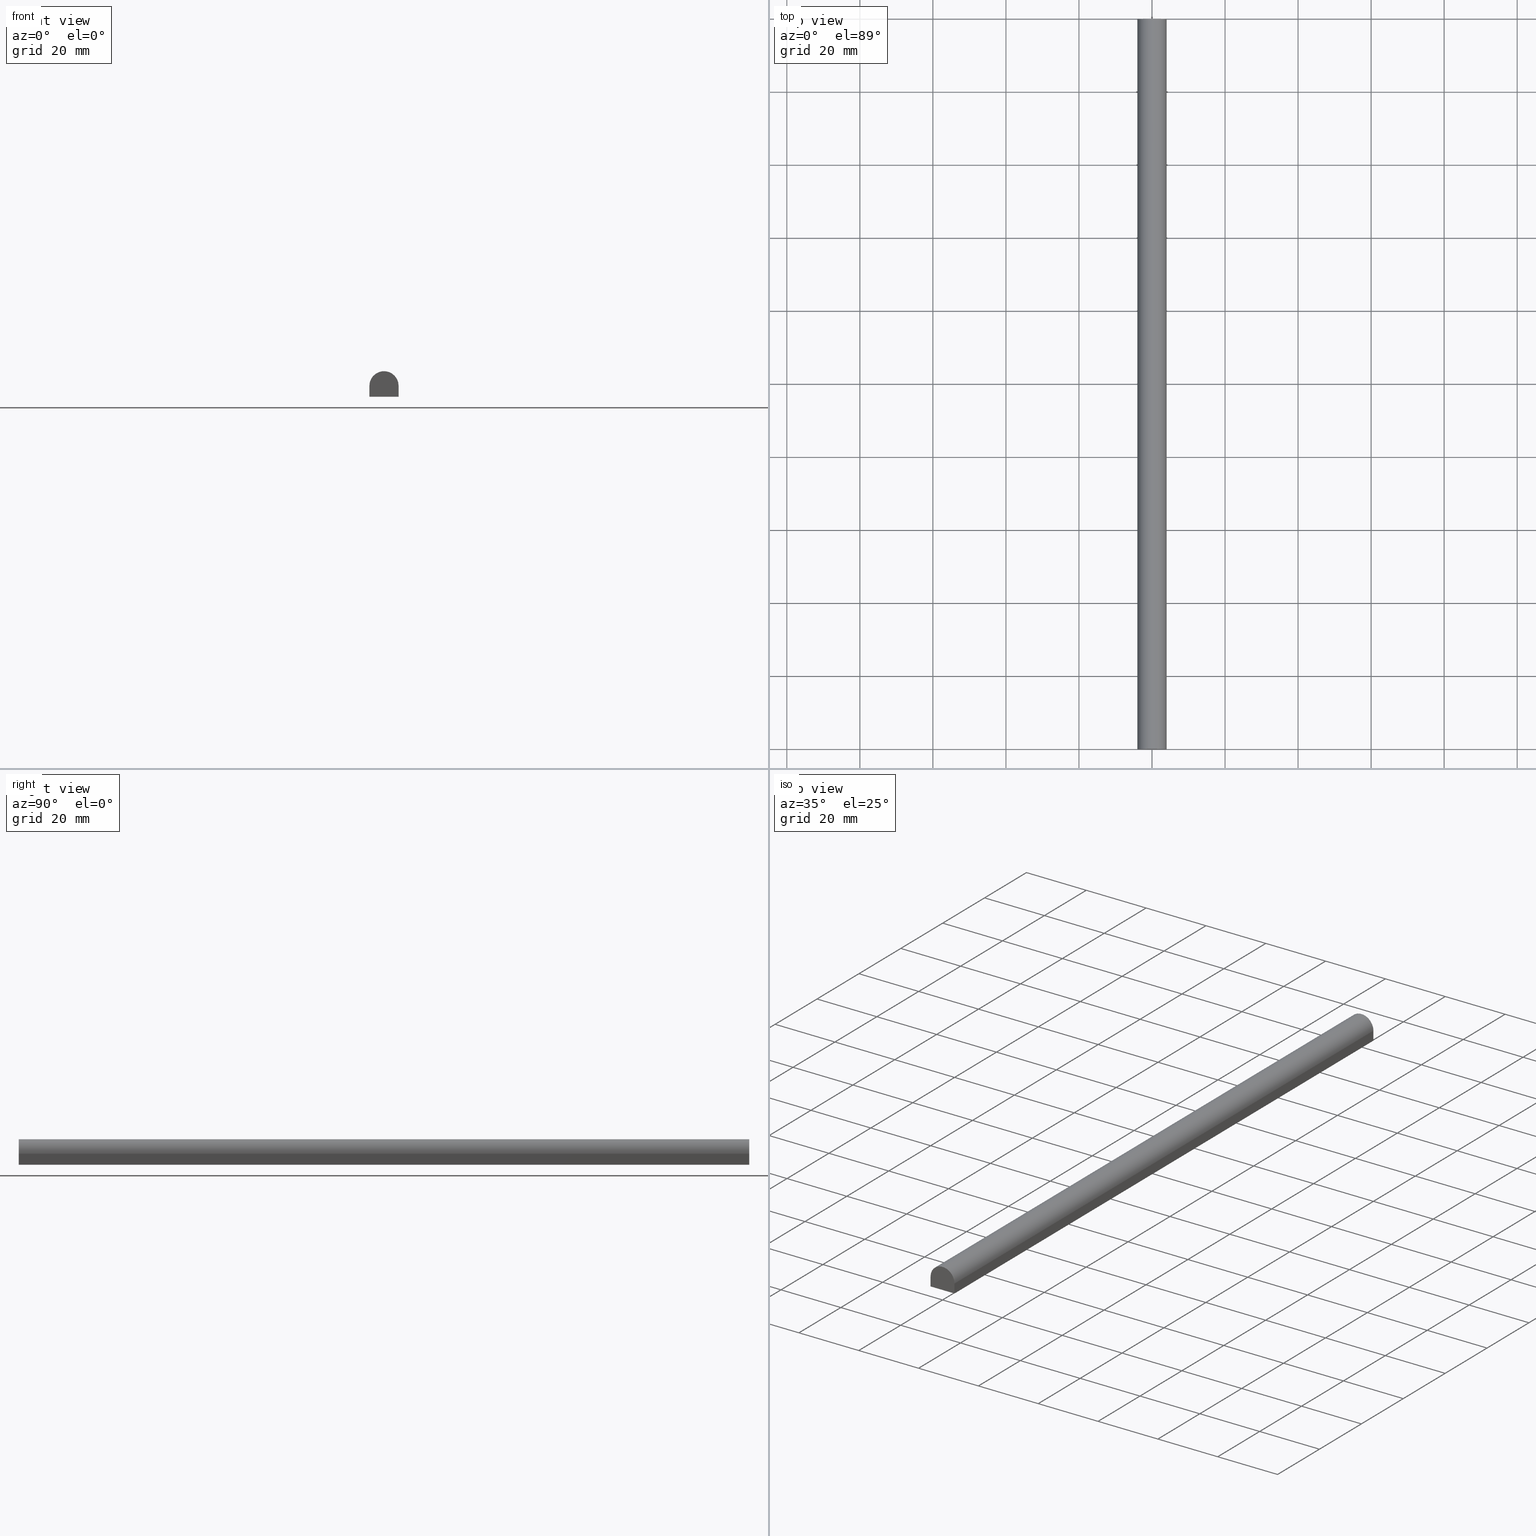
[diagram: canonical four-view strip — front | top / right | iso, engineering-drawing reading convention]
A machine part, canonical four-view strip (front | top / right | iso — engineering-drawing reading convention). The complete STEP part file that produces these views, byte-faithful:
ISO-10303-21;
HEADER;
FILE_DESCRIPTION (( 'STEP AP214' ),
    '1' );
FILE_NAME ('TM_341W_2.STEP',
    '2016-05-10T04:10:50',
    ( '' ),
    ( '' ),
    'SwSTEP 2.0',
    'SolidWorks 2015',
    '' );
FILE_SCHEMA (( 'AUTOMOTIVE_DESIGN' ));
ENDSEC;

DATA;
#1 = CARTESIAN_POINT ( 'NONE',  ( 4.000000000000000000, 1000.000000000000000, -0.5000000000000000000 ) ) ;
#2 = CARTESIAN_POINT ( 'NONE',  ( 0.0000000000000000000, 0.0000000000000000000, 0.0000000000000000000 ) ) ;
#3 = EDGE_LOOP ( 'NONE', ( #182, #129, #164, #157 ) ) ;
#4 =( LENGTH_UNIT ( ) NAMED_UNIT ( * ) SI_UNIT ( .MILLI., .METRE. ) );
#5 = AXIS2_PLACEMENT_3D ( 'NONE', #117, #39, #173 ) ;
#6 = PRODUCT_DEFINITION_FORMATION_WITH_SPECIFIED_SOURCE ( 'ANY', '', #73, .NOT_KNOWN. ) ;
#7 = ORIENTED_EDGE ( 'NONE', *, *, #188, .T. ) ;
#8 =( NAMED_UNIT ( * ) SI_UNIT ( $, .STERADIAN. ) SOLID_ANGLE_UNIT ( ) );
#9 = SURFACE_SIDE_STYLE ('',( #24 ) ) ;
#10 =( LENGTH_UNIT ( ) NAMED_UNIT ( * ) SI_UNIT ( .MILLI., .METRE. ) );
#11 = FACE_OUTER_BOUND ( 'NONE', #176, .T. ) ;
#12 = ADVANCED_FACE ( 'NONE', ( #11 ), #61, .T. ) ;
#13 = VERTEX_POINT ( 'NONE', #108 ) ;
#14 = DIRECTION ( 'NONE',  ( 0.0000000000000000000, 0.0000000000000000000, -1.000000000000000000 ) ) ;
#15 = CARTESIAN_POINT ( 'NONE',  ( -4.000000000000000000, 1000.000000000000000, -3.500000000000000000 ) ) ;
#16 = FACE_OUTER_BOUND ( 'NONE', #126, .T. ) ;
#17 = AXIS2_PLACEMENT_3D ( 'NONE', #95, #185, #53 ) ;
#18 = PRODUCT_CONTEXT ( 'NONE', #101, 'mechanical' ) ;
#19 = PRODUCT_RELATED_PRODUCT_CATEGORY ( 'part', '', ( #73 ) ) ;
#20 =( NAMED_UNIT ( * ) PLANE_ANGLE_UNIT ( ) SI_UNIT ( $, .RADIAN. ) );
#21 = VECTOR ( 'NONE', #55, 1000.000000000000000 ) ;
#22 = SHAPE_REPRESENTATION ( 'TM_341W_2', ( #203, #30 ), #191 ) ;
#23 = PRODUCT ( 'rubber foam', 'rubber foam', '', ( #18 ) ) ;
#24 = SURFACE_STYLE_FILL_AREA ( #146 ) ;
#25 = SHAPE_REPRESENTATION ( 'rubber foam', ( #83 ), #107 ) ;
#26 = PRODUCT_DEFINITION_SHAPE ( 'NONE', 'NONE',  #238 ) ;
#27 = MANIFOLD_SOLID_BREP ( '���߰�1', #134 ) ;
#28 = VERTEX_POINT ( 'NONE', #111 ) ;
#29 = CARTESIAN_POINT ( 'NONE',  ( -4.000000000000000000, 200.0000000000000000, 0.0000000000000000000 ) ) ;
#30 = AXIS2_PLACEMENT_3D ( 'NONE', #66, #103, #193 ) ;
#31 = PRODUCT_DEFINITION_FORMATION_WITH_SPECIFIED_SOURCE ( 'ANY', '', #23, .NOT_KNOWN. ) ;
#32 = VECTOR ( 'NONE', #202, 1000.000000000000000 ) ;
#33 = DIRECTION ( 'NONE',  ( -0.0000000000000000000, -0.0000000000000000000, -1.000000000000000000 ) ) ;
#34 = ORIENTED_EDGE ( 'NONE', *, *, #194, .T. ) ;
#35 = DIRECTION ( 'NONE',  ( 1.000000000000000000, -0.0000000000000000000, -0.0000000000000000000 ) ) ;
#36 = PLANE ( 'NONE',  #118 ) ;
#37 = ORIENTED_EDGE ( 'NONE', *, *, #175, .T. ) ;
#38 = APPLICATION_PROTOCOL_DEFINITION ( 'draft international standard', 'automotive_design', 1998, #192 ) ;
#39 = DIRECTION ( 'NONE',  ( 0.0000000000000000000, 0.0000000000000000000, 1.000000000000000000 ) ) ;
#40 = DIRECTION ( 'NONE',  ( 0.0000000000000000000, 0.0000000000000000000, 1.000000000000000000 ) ) ;
#41 = PRODUCT_DEFINITION_CONTEXT ( 'detailed design', #192, 'design' ) ;
#42 = FACE_OUTER_BOUND ( 'NONE', #3, .T. ) ;
#43 = ORIENTED_EDGE ( 'NONE', *, *, #229, .F. ) ;
#44 = CARTESIAN_POINT ( 'NONE',  ( 0.0000000000000000000, 0.0000000000000000000, 0.0000000000000000000 ) ) ;
#45 =( NAMED_UNIT ( * ) PLANE_ANGLE_UNIT ( ) SI_UNIT ( $, .RADIAN. ) );
#46 = MECHANICAL_DESIGN_GEOMETRIC_PRESENTATION_REPRESENTATION (  '', ( #72 ), #64 ) ;
#47 = PRODUCT_RELATED_PRODUCT_CATEGORY ( 'part', '', ( #23 ) ) ;
#48 = MECHANICAL_DESIGN_GEOMETRIC_PRESENTATION_REPRESENTATION (  '', ( #200 ), #102 ) ;
#49 = PRESENTATION_STYLE_ASSIGNMENT (( #58 ) ) ;
#50 = ADVANCED_BREP_SHAPE_REPRESENTATION ( '', ( #27, #83 ), #107 ) ;
#51 = LINE ( 'NONE', #29, #145 ) ;
#52 = ORIENTED_EDGE ( 'NONE', *, *, #149, .T. ) ;
#53 = DIRECTION ( 'NONE',  ( 0.0000000000000000000, 0.0000000000000000000, 1.000000000000000000 ) ) ;
#54 =( NAMED_UNIT ( * ) PLANE_ANGLE_UNIT ( ) SI_UNIT ( $, .RADIAN. ) );
#55 = DIRECTION ( 'NONE',  ( 0.0000000000000000000, -1.000000000000000000, 0.0000000000000000000 ) ) ;
#56 = CARTESIAN_POINT ( 'NONE',  ( -4.000000000000000000, 1000.000000000000000, -0.5000000000000000000 ) ) ;
#57 = PRESENTATION_LAYER_ASSIGNMENT (  '', '', ( #200 ) ) ;
#58 = SURFACE_STYLE_USAGE ( .BOTH. , #186 ) ;
#59 = UNCERTAINTY_MEASURE_WITH_UNIT (LENGTH_MEASURE( 1.000000000000000100E-005 ), #10, 'distance_accuracy_value', 'NONE');
#60 = VECTOR ( 'NONE', #78, 1000.000000000000000 ) ;
#61 = PLANE ( 'NONE',  #135 ) ;
#62 = PRESENTATION_STYLE_ASSIGNMENT (( #159 ) ) ;
#63 = PRODUCT_DEFINITION_SHAPE ( 'NONE', 'NONE',  #241 ) ;
#64 =( GEOMETRIC_REPRESENTATION_CONTEXT ( 3 ) GLOBAL_UNCERTAINTY_ASSIGNED_CONTEXT ( ( #59 ) ) GLOBAL_UNIT_ASSIGNED_CONTEXT ( ( #10, #54, #8 ) ) REPRESENTATION_CONTEXT ( 'NONE', 'WORKASPACE' ) );
#65 = PRODUCT_CONTEXT ( 'NONE', #80, 'mechanical' ) ;
#66 = CARTESIAN_POINT ( 'NONE',  ( 0.0000000000000000000, 0.0000000000000000000, 0.0000000000000000000 ) ) ;
#67 = DIRECTION ( 'NONE',  ( 0.0000000000000000000, 0.0000000000000000000, -1.000000000000000000 ) ) ;
#68 = AXIS2_PLACEMENT_3D ( 'NONE', #216, #113, #204 ) ;
#69 = VECTOR ( 'NONE', #35, 1000.000000000000000 ) ;
#70 = PLANE ( 'NONE',  #68 ) ;
#71 = LINE ( 'NONE', #239, #84 ) ;
#72 = STYLED_ITEM ( 'NONE', ( #62 ), #27 ) ;
#73 = PRODUCT ( 'TM_341W_2', 'TM_341W_2', '', ( #65 ) ) ;
#74 = DIRECTION ( 'NONE',  ( -1.000000000000000000, 0.0000000000000000000, 0.0000000000000000000 ) ) ;
#75 = ADVANCED_FACE ( 'NONE', ( #42 ), #106, .T. ) ;
#76 = UNCERTAINTY_MEASURE_WITH_UNIT (LENGTH_MEASURE( 1.000000000000000100E-005 ), #4, 'distance_accuracy_value', 'NONE');
#77 = CARTESIAN_POINT ( 'NONE',  ( 0.0000000000000000000, 0.0000000000000000000, -3.500000000000000000 ) ) ;
#78 = DIRECTION ( 'NONE',  ( -0.0000000000000000000, -0.0000000000000000000, -1.000000000000000000 ) ) ;
#79 = VERTEX_POINT ( 'NONE', #180 ) ;
#80 = APPLICATION_CONTEXT ( 'automotive_design' ) ;
#81 = CONTEXT_DEPENDENT_SHAPE_REPRESENTATION ( #136, #63 ) ;
#82 = LINE ( 'NONE', #148, #32 ) ;
#83 = AXIS2_PLACEMENT_3D ( 'NONE', #2, #105, #211 ) ;
#84 = VECTOR ( 'NONE', #179, 1000.000000000000000 ) ;
#85 = VERTEX_POINT ( 'NONE', #128 ) ;
#86 = FILL_AREA_STYLE_COLOUR ( '', #110 ) ;
#87 = ORIENTED_EDGE ( 'NONE', *, *, #188, .F. ) ;
#88 = VECTOR ( 'NONE', #210, 1000.000000000000000 ) ;
#89 = ORIENTED_EDGE ( 'NONE', *, *, #167, .F. ) ;
#90 = ORIENTED_EDGE ( 'NONE', *, *, #229, .T. ) ;
#91 = FACE_OUTER_BOUND ( 'NONE', #232, .T. ) ;
#92 = AXIS2_PLACEMENT_3D ( 'NONE', #219, #222, #163 ) ;
#93 = PLANE ( 'NONE',  #115 ) ;
#94 = EDGE_LOOP ( 'NONE', ( #235, #181, #237, #97 ) ) ;
#95 = CARTESIAN_POINT ( 'NONE',  ( 0.0000000000000000000, 200.0000000000000000, -0.5000000000000000000 ) ) ;
#96 = LINE ( 'NONE', #104, #88 ) ;
#97 = ORIENTED_EDGE ( 'NONE', *, *, #178, .T. ) ;
#98 = ORIENTED_EDGE ( 'NONE', *, *, #141, .T. ) ;
#99 = LINE ( 'NONE', #184, #233 ) ;
#100 = CARTESIAN_POINT ( 'NONE',  ( -4.000000000000000000, 0.0000000000000000000, -3.500000000000000000 ) ) ;
#101 = APPLICATION_CONTEXT ( 'automotive_design' ) ;
#102 =( GEOMETRIC_REPRESENTATION_CONTEXT ( 3 ) GLOBAL_UNCERTAINTY_ASSIGNED_CONTEXT ( ( #139 ) ) GLOBAL_UNIT_ASSIGNED_CONTEXT ( ( #156, #20, #138 ) ) REPRESENTATION_CONTEXT ( 'NONE', 'WORKASPACE' ) );
#103 = DIRECTION ( 'NONE',  ( 0.0000000000000000000, 0.0000000000000000000, 1.000000000000000000 ) ) ;
#104 = CARTESIAN_POINT ( 'NONE',  ( 4.000000000000000000, 0.0000000000000000000, 0.0000000000000000000 ) ) ;
#105 = DIRECTION ( 'NONE',  ( 0.0000000000000000000, 0.0000000000000000000, 1.000000000000000000 ) ) ;
#106 = PLANE ( 'NONE',  #122 ) ;
#107 =( GEOMETRIC_REPRESENTATION_CONTEXT ( 3 ) GLOBAL_UNCERTAINTY_ASSIGNED_CONTEXT ( ( #76 ) ) GLOBAL_UNIT_ASSIGNED_CONTEXT ( ( #4, #45, #228 ) ) REPRESENTATION_CONTEXT ( 'NONE', 'WORKASPACE' ) );
#108 = CARTESIAN_POINT ( 'NONE',  ( 4.000000000000000000, 200.0000000000000000, -0.5000000000000000000 ) ) ;
#109 = ORIENTED_EDGE ( 'NONE', *, *, #194, .F. ) ;
#110 = COLOUR_RGB ( '',0.7921568627450980000, 0.8196078431372548800, 0.9333333333333333500 ) ;
#111 = CARTESIAN_POINT ( 'NONE',  ( 4.000000000000000000, 200.0000000000000000, -3.500000000000000000 ) ) ;
#112 = DIRECTION ( 'NONE',  ( -0.0000000000000000000, 1.000000000000000000, 0.0000000000000000000 ) ) ;
#113 = DIRECTION ( 'NONE',  ( -0.0000000000000000000, 1.000000000000000000, 0.0000000000000000000 ) ) ;
#114 =( NAMED_UNIT ( * ) PLANE_ANGLE_UNIT ( ) SI_UNIT ( $, .RADIAN. ) );
#115 = AXIS2_PLACEMENT_3D ( 'NONE', #166, #112, #130 ) ;
#116 = EDGE_CURVE ( 'NONE', #13, #79, #230, .T. ) ;
#117 = CARTESIAN_POINT ( 'NONE',  ( 0.0000000000000000000, 0.0000000000000000000, 0.0000000000000000000 ) ) ;
#118 = AXIS2_PLACEMENT_3D ( 'NONE', #15, #132, #150 ) ;
#119 = SHAPE_DEFINITION_REPRESENTATION ( #183, #25 ) ;
#120 = LINE ( 'NONE', #1, #21 ) ;
#121 = ORIENTED_EDGE ( 'NONE', *, *, #161, .F. ) ;
#122 = AXIS2_PLACEMENT_3D ( 'NONE', #214, #199, #14 ) ;
#123 = LINE ( 'NONE', #168, #60 ) ;
#124 = ADVANCED_FACE ( 'NONE', ( #218 ), #70, .F. ) ;
#125 = VECTOR ( 'NONE', #165, 1000.000000000000000 ) ;
#126 = EDGE_LOOP ( 'NONE', ( #226, #121, #227, #89 ) ) ;
#127 = FACE_OUTER_BOUND ( 'NONE', #94, .T. ) ;
#128 = CARTESIAN_POINT ( 'NONE',  ( 4.000000000000000000, 0.0000000000000000000, -0.5000000000000000000 ) ) ;
#129 = ORIENTED_EDGE ( 'NONE', *, *, #141, .F. ) ;
#130 = DIRECTION ( 'NONE',  ( 1.000000000000000000, 0.0000000000000000000, 0.0000000000000000000 ) ) ;
#131 = ADVANCED_FACE ( 'NONE', ( #16 ), #93, .T. ) ;
#132 = DIRECTION ( 'NONE',  ( 0.0000000000000000000, 0.0000000000000000000, -1.000000000000000000 ) ) ;
#133 = SHAPE_REPRESENTATION_RELATIONSHIP ( 'NONE' , 'NONE' ,  #25, #50 ) ;
#134 = CLOSED_SHELL ( 'NONE', ( #196, #75, #234, #12, #131, #124 ) ) ;
#135 = AXIS2_PLACEMENT_3D ( 'NONE', #56, #74, #151 ) ;
#136 =( REPRESENTATION_RELATIONSHIP ('NONE','NONE', #22, #25 ) REPRESENTATION_RELATIONSHIP_WITH_TRANSFORMATION ( #169 )SHAPE_REPRESENTATION_RELATIONSHIP( ) );
#137 = SURFACE_STYLE_FILL_AREA ( #198 ) ;
#138 =( NAMED_UNIT ( * ) SI_UNIT ( $, .STERADIAN. ) SOLID_ANGLE_UNIT ( ) );
#139 = UNCERTAINTY_MEASURE_WITH_UNIT (LENGTH_MEASURE( 1.000000000000000100E-005 ), #156, 'distance_accuracy_value', 'NONE');
#140 = ORIENTED_EDGE ( 'NONE', *, *, #205, .T. ) ;
#141 = EDGE_CURVE ( 'NONE', #28, #240, #171, .T. ) ;
#142 = CARTESIAN_POINT ( 'NONE',  ( 4.000000000000000000, 0.0000000000000000000, -3.500000000000000000 ) ) ;
#143 = VERTEX_POINT ( 'NONE', #236 ) ;
#144 = VERTEX_POINT ( 'NONE', #147 ) ;
#145 = VECTOR ( 'NONE', #33, 1000.000000000000000 ) ;
#146 = FILL_AREA_STYLE ('',( #220 ) ) ;
#147 = CARTESIAN_POINT ( 'NONE',  ( -4.000000000000000000, 0.0000000000000000000, -0.5000000000000000000 ) ) ;
#148 = CARTESIAN_POINT ( 'NONE',  ( 0.0000000000000000000, 200.0000000000000000, -3.500000000000000000 ) ) ;
#149 = EDGE_CURVE ( 'NONE', #85, #144, #170, .T. ) ;
#150 = DIRECTION ( 'NONE',  ( -1.000000000000000000, 0.0000000000000000000, 0.0000000000000000000 ) ) ;
#151 = DIRECTION ( 'NONE',  ( 0.0000000000000000000, 0.0000000000000000000, 1.000000000000000000 ) ) ;
#152 = VECTOR ( 'NONE', #221, 1000.000000000000000 ) ;
#153 = APPLICATION_CONTEXT ( 'automotive_design' ) ;
#154 = LINE ( 'NONE', #77, #69 ) ;
#155 = EDGE_CURVE ( 'NONE', #13, #85, #120, .T. ) ;
#156 =( LENGTH_UNIT ( ) NAMED_UNIT ( * ) SI_UNIT ( .MILLI., .METRE. ) );
#157 = ORIENTED_EDGE ( 'NONE', *, *, #155, .T. ) ;
#158 = ORIENTED_EDGE ( 'NONE', *, *, #178, .F. ) ;
#159 = SURFACE_STYLE_USAGE ( .BOTH. , #9 ) ;
#160 = UNCERTAINTY_MEASURE_WITH_UNIT (LENGTH_MEASURE( 1.000000000000000100E-005 ), #209, 'distance_accuracy_value', 'NONE');
#161 = EDGE_CURVE ( 'NONE', #79, #143, #51, .T. ) ;
#162 = DIRECTION ( 'NONE',  ( 0.0000000000000000000, -1.000000000000000000, 0.0000000000000000000 ) ) ;
#163 = DIRECTION ( 'NONE',  ( 0.0000000000000000000, 0.0000000000000000000, 1.000000000000000000 ) ) ;
#164 = ORIENTED_EDGE ( 'NONE', *, *, #167, .T. ) ;
#165 = DIRECTION ( 'NONE',  ( 0.0000000000000000000, -1.000000000000000000, 0.0000000000000000000 ) ) ;
#166 = CARTESIAN_POINT ( 'NONE',  ( 0.0000000000000000000, 200.0000000000000000, 0.0000000000000000000 ) ) ;
#167 = EDGE_CURVE ( 'NONE', #28, #13, #201, .T. ) ;
#168 = CARTESIAN_POINT ( 'NONE',  ( -4.000000000000000000, 0.0000000000000000000, 0.0000000000000000000 ) ) ;
#169 = ITEM_DEFINED_TRANSFORMATION ( 'NONE', 'NONE', #30,  #83 ) ;
#170 = CIRCLE ( 'NONE', #92, 4.000000000000000000 ) ;
#171 = LINE ( 'NONE', #224, #125 ) ;
#172 = APPLICATION_PROTOCOL_DEFINITION ( 'draft international standard', 'automotive_design', 1998, #101 ) ;
#173 = DIRECTION ( 'NONE',  ( 1.000000000000000000, 0.0000000000000000000, 0.0000000000000000000 ) ) ;
#174 = DIRECTION ( 'NONE',  ( 1.000000000000000000, 0.0000000000000000000, 0.0000000000000000000 ) ) ;
#175 = EDGE_CURVE ( 'NONE', #143, #28, #82, .T. ) ;
#176 = EDGE_LOOP ( 'NONE', ( #43, #158, #195, #7 ) ) ;
#177 = COLOUR_RGB ( '',0.7921568627450980000, 0.8196078431372548800, 0.9333333333333333500 ) ;
#178 = EDGE_CURVE ( 'NONE', #79, #144, #99, .T. ) ;
#179 = DIRECTION ( 'NONE',  ( 0.0000000000000000000, -1.000000000000000000, 0.0000000000000000000 ) ) ;
#180 = CARTESIAN_POINT ( 'NONE',  ( -4.000000000000000000, 200.0000000000000000, -0.5000000000000000000 ) ) ;
#181 = ORIENTED_EDGE ( 'NONE', *, *, #155, .F. ) ;
#182 = ORIENTED_EDGE ( 'NONE', *, *, #205, .F. ) ;
#183 = PRODUCT_DEFINITION_SHAPE ( 'NONE', 'NONE',  #212 ) ;
#184 = CARTESIAN_POINT ( 'NONE',  ( -4.000000000000000000, 1000.000000000000000, -0.5000000000000000000 ) ) ;
#185 = DIRECTION ( 'NONE',  ( -0.0000000000000000000, -1.000000000000000000, -0.0000000000000000000 ) ) ;
#186 = SURFACE_SIDE_STYLE ('',( #137 ) ) ;
#187 = CYLINDRICAL_SURFACE ( 'NONE', #223, 4.000000000000000000 ) ;
#188 = EDGE_CURVE ( 'NONE', #143, #190, #71, .T. ) ;
#189 = CARTESIAN_POINT ( 'NONE',  ( 0.0000000000000000000, 1000.000000000000000, -0.5000000000000000000 ) ) ;
#190 = VERTEX_POINT ( 'NONE', #100 ) ;
#191 =( GEOMETRIC_REPRESENTATION_CONTEXT ( 3 ) GLOBAL_UNCERTAINTY_ASSIGNED_CONTEXT ( ( #160 ) ) GLOBAL_UNIT_ASSIGNED_CONTEXT ( ( #209, #114, #231 ) ) REPRESENTATION_CONTEXT ( 'NONE', 'WORKASPACE' ) );
#192 = APPLICATION_CONTEXT ( 'automotive_design' ) ;
#193 = DIRECTION ( 'NONE',  ( 1.000000000000000000, 0.0000000000000000000, 0.0000000000000000000 ) ) ;
#194 = EDGE_CURVE ( 'NONE', #190, #240, #154, .T. ) ;
#195 = ORIENTED_EDGE ( 'NONE', *, *, #161, .T. ) ;
#196 = ADVANCED_FACE ( 'NONE', ( #91 ), #36, .T. ) ;
#197 = DIRECTION ( 'NONE',  ( 0.0000000000000000000, -1.000000000000000000, 0.0000000000000000000 ) ) ;
#198 = FILL_AREA_STYLE ('',( #86 ) ) ;
#199 = DIRECTION ( 'NONE',  ( 1.000000000000000000, 0.0000000000000000000, 0.0000000000000000000 ) ) ;
#200 = STYLED_ITEM ( 'NONE', ( #49 ), #50 ) ;
#201 = LINE ( 'NONE', #206, #152 ) ;
#202 = DIRECTION ( 'NONE',  ( 1.000000000000000000, -0.0000000000000000000, -0.0000000000000000000 ) ) ;
#203 = AXIS2_PLACEMENT_3D ( 'NONE', #44, #40, #174 ) ;
#204 = DIRECTION ( 'NONE',  ( 1.000000000000000000, 0.0000000000000000000, 0.0000000000000000000 ) ) ;
#205 = EDGE_CURVE ( 'NONE', #240, #85, #96, .T. ) ;
#206 = CARTESIAN_POINT ( 'NONE',  ( 4.000000000000000000, 200.0000000000000000, 0.0000000000000000000 ) ) ;
#207 = APPLICATION_PROTOCOL_DEFINITION ( 'draft international standard', 'automotive_design', 1998, #153 ) ;
#208 = APPLICATION_PROTOCOL_DEFINITION ( 'draft international standard', 'automotive_design', 1998, #80 ) ;
#209 =( LENGTH_UNIT ( ) NAMED_UNIT ( * ) SI_UNIT ( .MILLI., .METRE. ) );
#210 = DIRECTION ( 'NONE',  ( -0.0000000000000000000, -0.0000000000000000000, 1.000000000000000000 ) ) ;
#211 = DIRECTION ( 'NONE',  ( 1.000000000000000000, 0.0000000000000000000, 0.0000000000000000000 ) ) ;
#212 = PRODUCT_DEFINITION ( 'UNKNOWN', '', #31, #215 ) ;
#213 = EDGE_LOOP ( 'NONE', ( #34, #140, #52, #90 ) ) ;
#214 = CARTESIAN_POINT ( 'NONE',  ( 4.000000000000000000, 1000.000000000000000, -3.500000000000000000 ) ) ;
#215 = PRODUCT_DEFINITION_CONTEXT ( 'detailed design', #153, 'design' ) ;
#216 = CARTESIAN_POINT ( 'NONE',  ( 0.0000000000000000000, 0.0000000000000000000, 0.0000000000000000000 ) ) ;
#217 = SHAPE_DEFINITION_REPRESENTATION ( #26, #22 ) ;
#218 = FACE_OUTER_BOUND ( 'NONE', #213, .T. ) ;
#219 = CARTESIAN_POINT ( 'NONE',  ( 0.0000000000000000000, 0.0000000000000000000, -0.5000000000000000000 ) ) ;
#220 = FILL_AREA_STYLE_COLOUR ( '', #177 ) ;
#221 = DIRECTION ( 'NONE',  ( -0.0000000000000000000, -0.0000000000000000000, 1.000000000000000000 ) ) ;
#222 = DIRECTION ( 'NONE',  ( -0.0000000000000000000, -1.000000000000000000, -0.0000000000000000000 ) ) ;
#223 = AXIS2_PLACEMENT_3D ( 'NONE', #189, #197, #67 ) ;
#224 = CARTESIAN_POINT ( 'NONE',  ( 4.000000000000000000, 1000.000000000000000, -3.500000000000000000 ) ) ;
#225 = PRESENTATION_LAYER_ASSIGNMENT (  '', '', ( #72 ) ) ;
#226 = ORIENTED_EDGE ( 'NONE', *, *, #175, .F. ) ;
#227 = ORIENTED_EDGE ( 'NONE', *, *, #116, .F. ) ;
#228 =( NAMED_UNIT ( * ) SI_UNIT ( $, .STERADIAN. ) SOLID_ANGLE_UNIT ( ) );
#229 = EDGE_CURVE ( 'NONE', #144, #190, #123, .T. ) ;
#230 = CIRCLE ( 'NONE', #17, 4.000000000000000000 ) ;
#231 =( NAMED_UNIT ( * ) SI_UNIT ( $, .STERADIAN. ) SOLID_ANGLE_UNIT ( ) );
#232 = EDGE_LOOP ( 'NONE', ( #109, #87, #37, #98 ) ) ;
#233 = VECTOR ( 'NONE', #162, 1000.000000000000000 ) ;
#234 = ADVANCED_FACE ( 'NONE', ( #127 ), #187, .T. ) ;
#235 = ORIENTED_EDGE ( 'NONE', *, *, #149, .F. ) ;
#236 = CARTESIAN_POINT ( 'NONE',  ( -4.000000000000000000, 200.0000000000000000, -3.500000000000000000 ) ) ;
#237 = ORIENTED_EDGE ( 'NONE', *, *, #116, .T. ) ;
#238 = PRODUCT_DEFINITION ( 'UNKNOWN', '', #6, #41 ) ;
#239 = CARTESIAN_POINT ( 'NONE',  ( -4.000000000000000000, 1000.000000000000000, -3.500000000000000000 ) ) ;
#240 = VERTEX_POINT ( 'NONE', #142 ) ;
#241 = NEXT_ASSEMBLY_USAGE_OCCURRENCE ( 'NAUO1', ' ', ' ', #238, #212, $ ) ;
ENDSEC;
END-ISO-10303-21;
